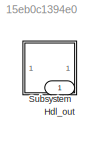
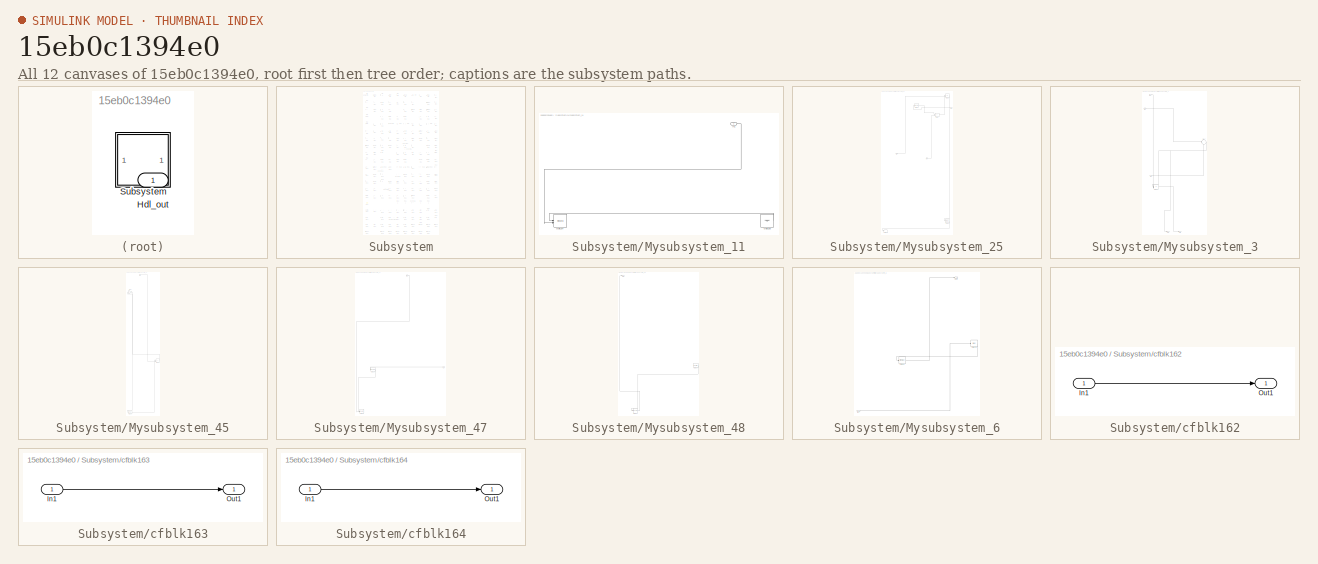
[diagram: thumbnail index - all 12 canvases of the model, root first then tree order]
MODEL slx_15eb0c1394e0
KIND model
CONFIG AbsTol = auto
CONFIG EnableMultiTasking = off
CONFIG FixedStep = auto
CONFIG MaxStep = auto
CONFIG MinStep = auto
CONFIG RelTol = 1e-3
CONFIG SampleTimeConstraint = Unconstrained
CONFIG SolverName = VariableStepAuto
CONFIG StartTime = 0.0
CONFIG StopTime = 10.0
BLOCK [Outport] Hdl_out
  OutDataTypeStr = uint8
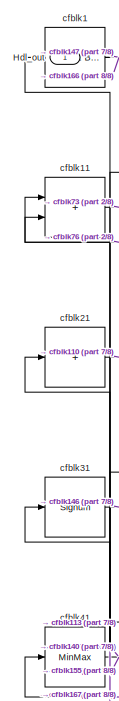
[diagram: Subsystem - part 1/8, top left region]
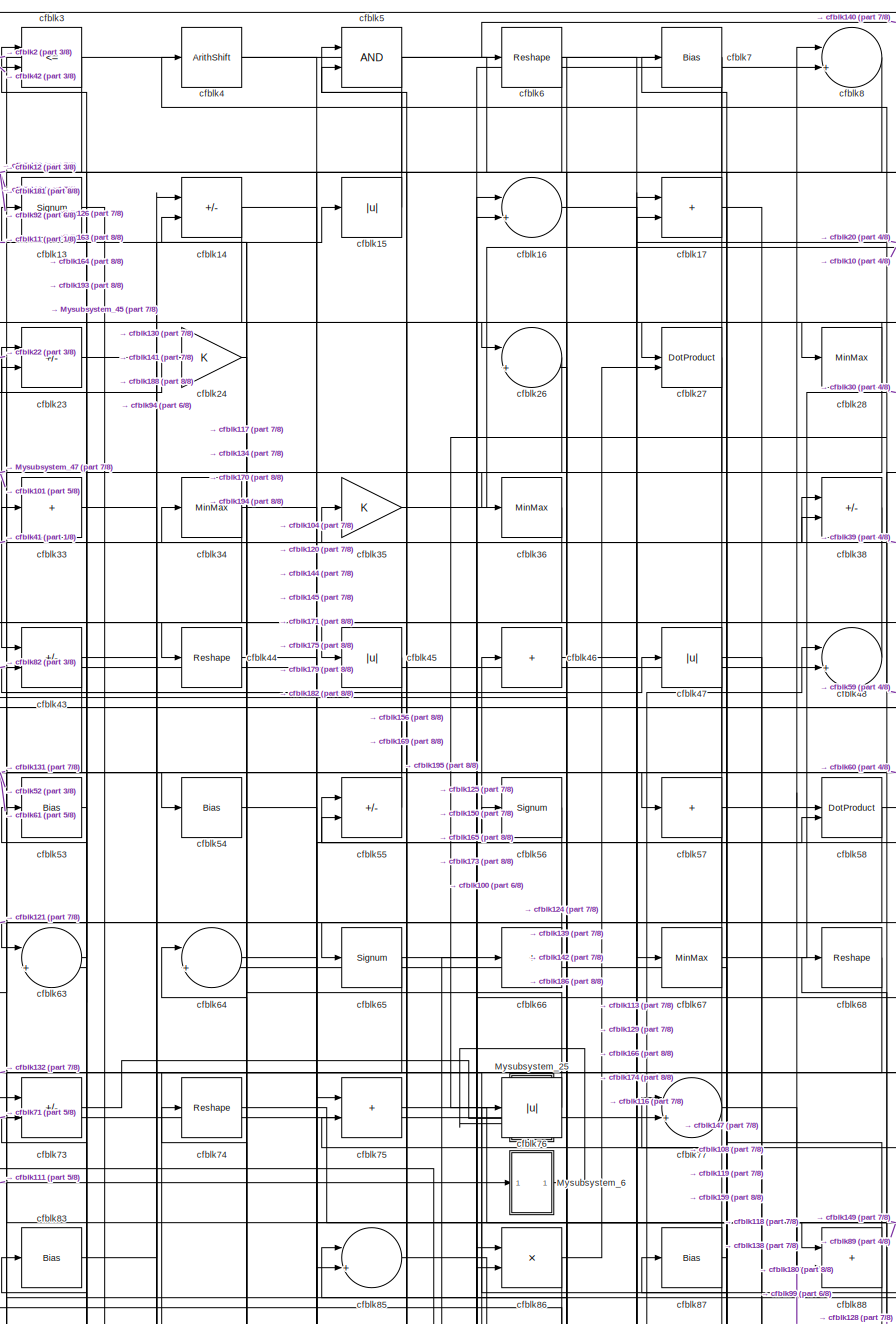
[diagram: Subsystem - part 2/8, top center region]
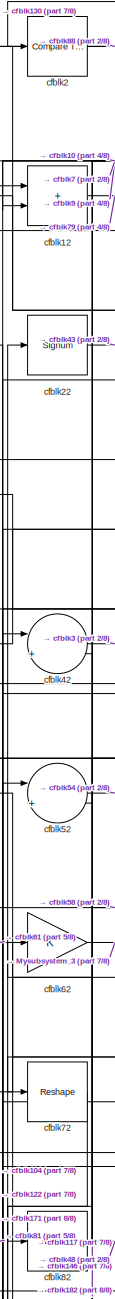
[diagram: Subsystem - part 3/8, top left region]
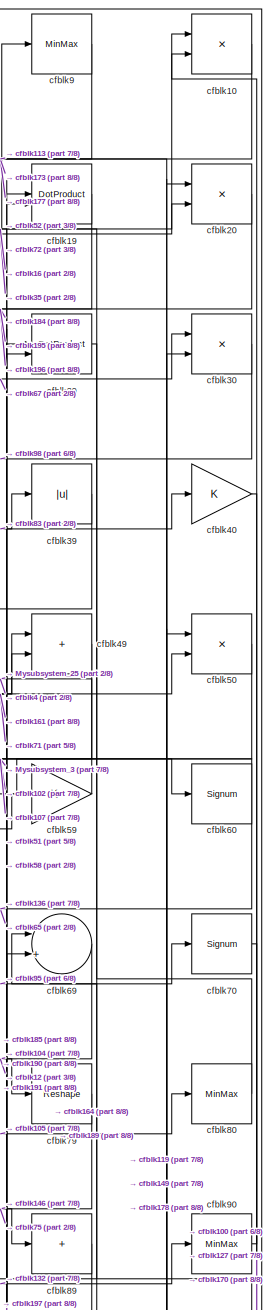
[diagram: Subsystem - part 4/8, top right region]
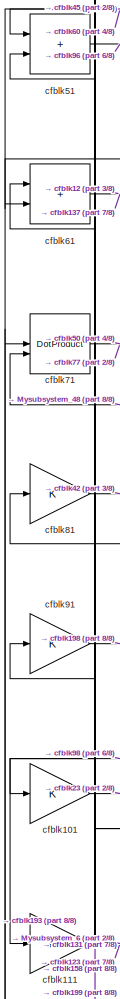
[diagram: Subsystem - part 5/8, middle left region]
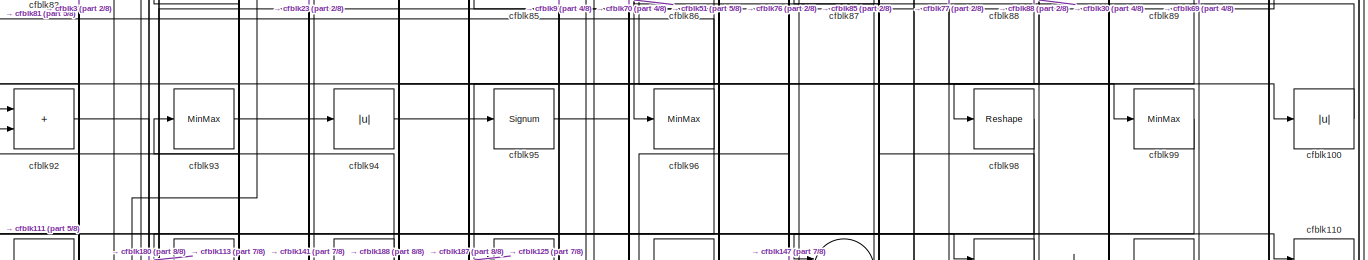
[diagram: Subsystem - part 6/8, full width, middle band]
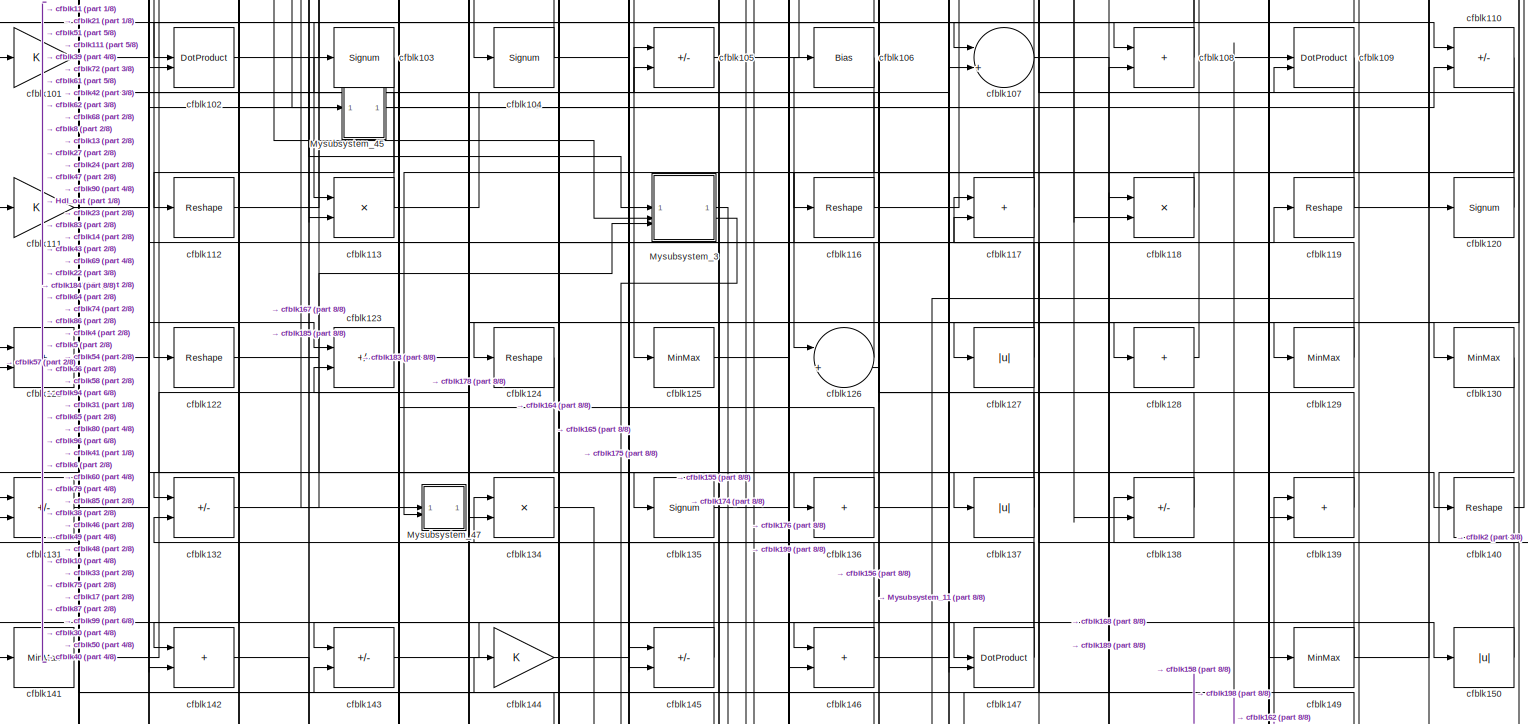
[diagram: Subsystem - part 7/8, full width, middle band]
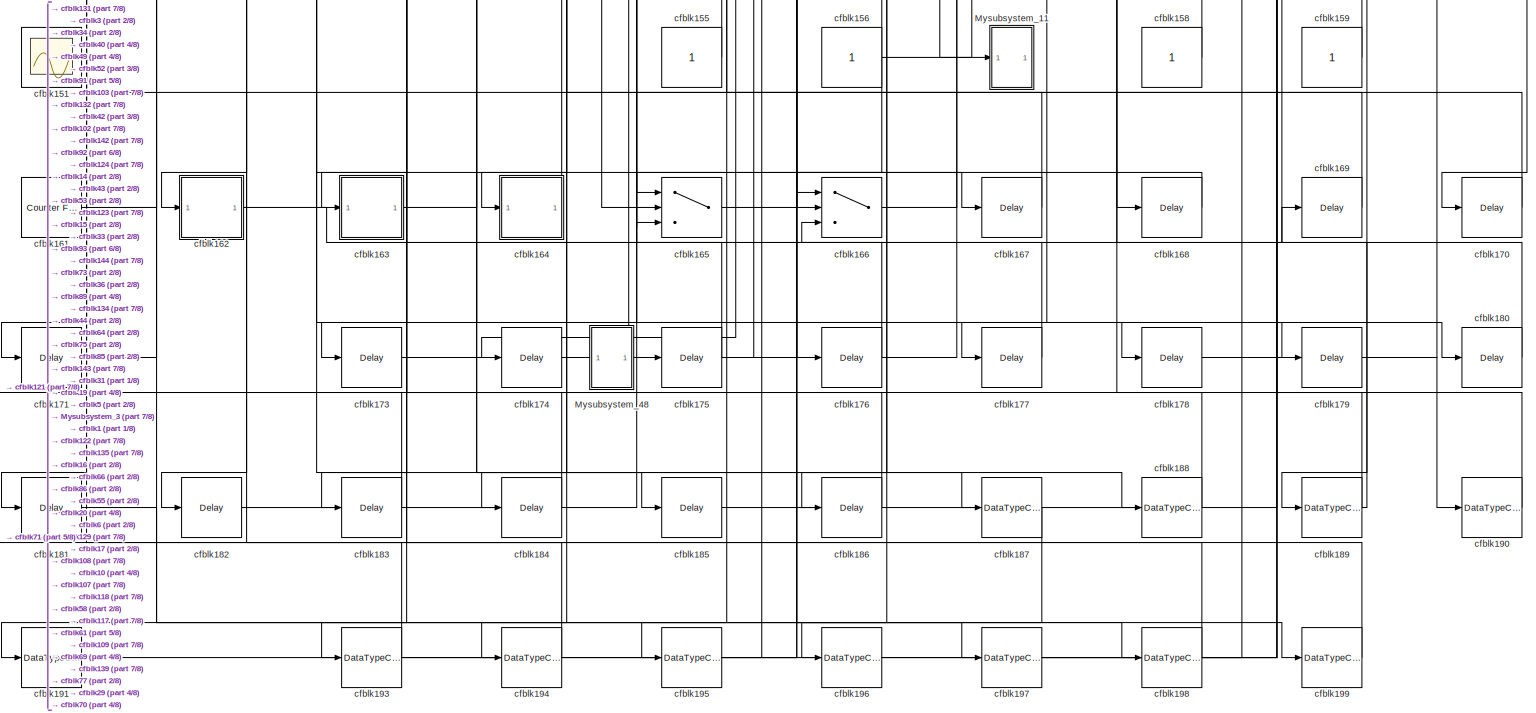
[diagram: Subsystem - part 8/8, full width, bottom band]
BLOCK [SubSystem] Subsystem
BLOCK [Outport] Subsystem/Hdl_out
  OutDataTypeStr = uint8
BLOCK [SubSystem] Subsystem/Mysubsystem_11
  RTWFcnName = Mysubsystem_11
  RTWFcnNameOpts = User specified
  RTWFileNameOpts = Use function name
  RTWSystemCode = Reusable function
  TreatAsAtomicUnit = on
BLOCK [Inport] Subsystem/Mysubsystem_11/In1
BLOCK [Record] Subsystem/Mysubsystem_11/cfblk154
  CompatibilityTag = XY
  FileSettingsInternal = {"entries":[{"content":{"excelSettings":{"content":{},"type":"Streamout.ExcelSettings"}},"type":"Streamout.FileSettingStorage","uuid":""}],"packageUris":["http:\/\/schema.mathworks.com\/mf0\/streamout_blocks\/R2020a"],"version":"1.0"}
  Layout = [1 1]
  SignalsInternal = {"entries":[{"content":{},"type":"RecordBlkView.InputSignals","uuid":""}],"packageUris":["http:\/\/schema.mathworks.com\/mf0\/streamout_blocks\/R2020a"],"version":"1.0"}
  VisualizationBindings = {"xyplotplugin":{"info":[{"series":[],"subplotID":1}]}}
  st = -1
BLOCK [Ground] Subsystem/Mysubsystem_11/cfblk160
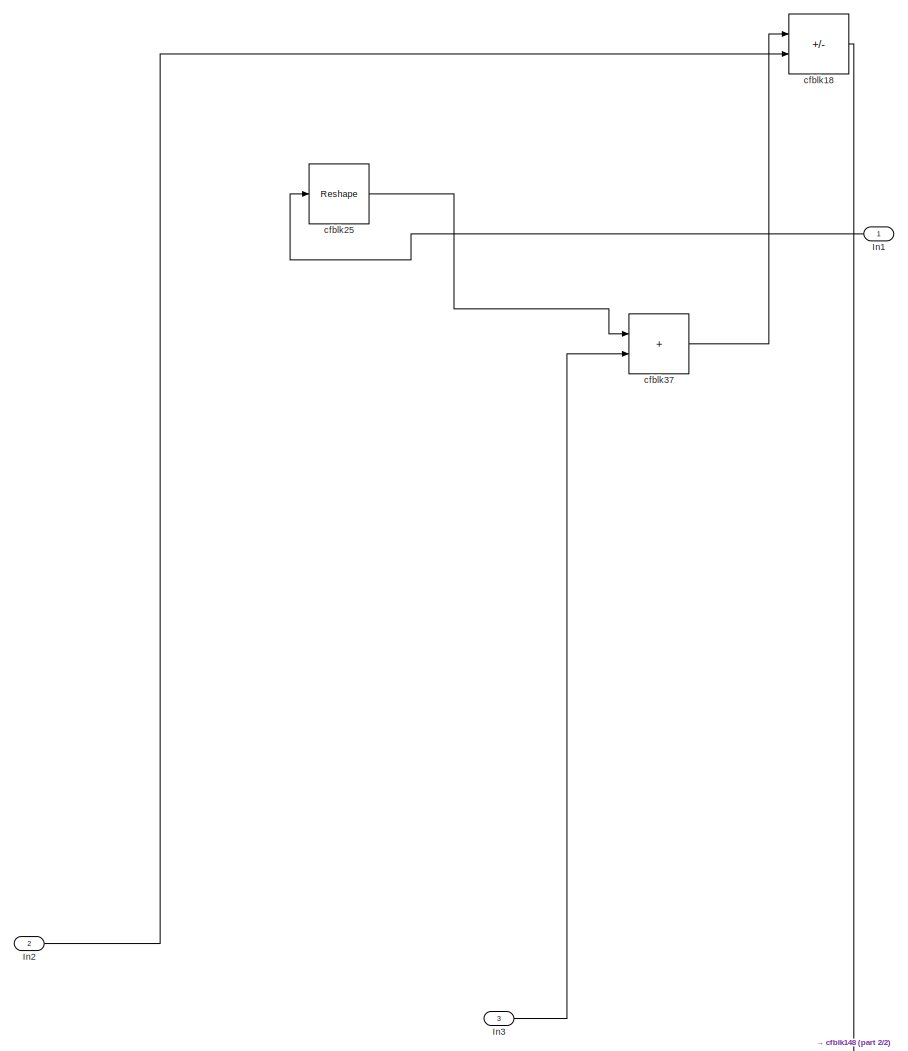
[diagram: Subsystem/Mysubsystem_25 - part 1/2, full width, top band]
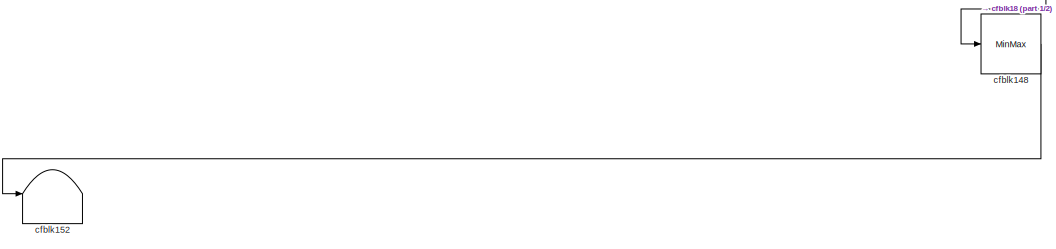
[diagram: Subsystem/Mysubsystem_25 - part 2/2, full width, bottom band]
BLOCK [SubSystem] Subsystem/Mysubsystem_25
  RTWFcnName = Mysubsystem_25
  RTWFcnNameOpts = User specified
  RTWFileNameOpts = Use function name
  RTWSystemCode = Reusable function
  TreatAsAtomicUnit = on
BLOCK [Inport] Subsystem/Mysubsystem_25/In1
BLOCK [Inport] Subsystem/Mysubsystem_25/In2
  Port = 2
BLOCK [Inport] Subsystem/Mysubsystem_25/In3
  Port = 3
BLOCK [MinMax] Subsystem/Mysubsystem_25/cfblk148
BLOCK [Terminator] Subsystem/Mysubsystem_25/cfblk152
BLOCK [Sum] Subsystem/Mysubsystem_25/cfblk18
  IconShape = rectangular
  Inputs = +-
BLOCK [Reshape] Subsystem/Mysubsystem_25/cfblk25
BLOCK [Sum] Subsystem/Mysubsystem_25/cfblk37
  IconShape = rectangular
BLOCK [SubSystem] Subsystem/Mysubsystem_3
  RTWFcnName = Mysubsystem_3
  RTWFcnNameOpts = User specified
  RTWFileNameOpts = Use function name
  RTWSystemCode = Reusable function
  TreatAsAtomicUnit = on
BLOCK [Inport] Subsystem/Mysubsystem_3/In1
BLOCK [Inport] Subsystem/Mysubsystem_3/In2
  Port = 2
BLOCK [Inport] Subsystem/Mysubsystem_3/In3
  Port = 3
BLOCK [Outport] Subsystem/Mysubsystem_3/Out1
BLOCK [Outport] Subsystem/Mysubsystem_3/Out2
  Port = 2
BLOCK [Product] Subsystem/Mysubsystem_3/cfblk133
  Inputs = */
  RndMeth = Zero
  SaturateOnIntegerOverflow = on
BLOCK [Sum] Subsystem/Mysubsystem_3/cfblk97
  Inputs = |++
BLOCK [SubSystem] Subsystem/Mysubsystem_45
  RTWFcnName = Mysubsystem_45
  RTWFcnNameOpts = User specified
  RTWFileNameOpts = Use function name
  RTWSystemCode = Reusable function
  TreatAsAtomicUnit = on
BLOCK [Inport] Subsystem/Mysubsystem_45/In1
BLOCK [Sum] Subsystem/Mysubsystem_45/cfblk115
  IconShape = rectangular
BLOCK [Delay] Subsystem/Mysubsystem_45/cfblk172
  InputPortMap = u0
  SampleTime = 1
BLOCK [Gain] Subsystem/Mysubsystem_45/cfblk32
BLOCK [SubSystem] Subsystem/Mysubsystem_47
  RTWFcnName = Mysubsystem_47
  RTWFcnNameOpts = User specified
  RTWFileNameOpts = Use function name
  RTWSystemCode = Reusable function
  TreatAsAtomicUnit = on
BLOCK [Inport] Subsystem/Mysubsystem_47/In1
BLOCK [Inport] Subsystem/Mysubsystem_47/In2
  Port = 2
BLOCK [Reshape] Subsystem/Mysubsystem_47/cfblk114
BLOCK [Record] Subsystem/Mysubsystem_47/cfblk153
  CompatibilityTag = XY
  FileSettingsInternal = {"entries":[{"content":{"excelSettings":{"content":{},"type":"Streamout.ExcelSettings"}},"type":"Streamout.FileSettingStorage","uuid":""}],"packageUris":["http:\/\/schema.mathworks.com\/mf0\/streamout_blocks\/R2020a"],"version":"1.0"}
  Layout = [1 1]
  SignalsInternal = {"entries":[{"content":{},"type":"RecordBlkView.InputSignals","uuid":""}],"packageUris":["http:\/\/schema.mathworks.com\/mf0\/streamout_blocks\/R2020a"],"version":"1.0"}
  VisualizationBindings = {"xyplotplugin":{"info":[{"series":[],"subplotID":1}]}}
  st = -1
BLOCK [SubSystem] Subsystem/Mysubsystem_48
  RTWFcnName = Mysubsystem_48
  RTWFcnNameOpts = User specified
  RTWFileNameOpts = Use function name
  RTWSystemCode = Reusable function
  TreatAsAtomicUnit = on
BLOCK [Outport] Subsystem/Mysubsystem_48/Out1
BLOCK [Reference] Subsystem/Mysubsystem_48/cfblk157  REF=hdlsllib/Sources/Counter
Free-Running
  SourceBlock = hdlsllib/Sources/Counter\nFree-Running
  SourceType = Counter Free-Running
BLOCK [DataTypeConversion] Subsystem/Mysubsystem_48/cfblk192
  OutDataTypeStr = uint8
  RndMeth = Floor
  SaturateOnIntegerOverflow = off
BLOCK [SubSystem] Subsystem/Mysubsystem_6
  RTWFcnName = Mysubsystem_6
  RTWFcnNameOpts = User specified
  RTWFileNameOpts = Use function name
  RTWSystemCode = Reusable function
  TreatAsAtomicUnit = on
BLOCK [Inport] Subsystem/Mysubsystem_6/In1
BLOCK [Outport] Subsystem/Mysubsystem_6/Out1
BLOCK [Bias] Subsystem/Mysubsystem_6/cfblk78
  Bias = 0.0
  SaturateOnIntegerOverflow = off
BLOCK [MinMax] Subsystem/Mysubsystem_6/cfblk84
BLOCK [Reference] Subsystem/cfblk1  REF=simulink/Logic and Bit
Operations/Extract Bits
  LibrarySourceBlock = hdlsllib/Logic and Bit\nOperations/Extract Bits
  SourceBlock = simulink/Logic and Bit\nOperations/Extract Bits
  SourceType = Extract Bits
BLOCK [Product] Subsystem/cfblk10
  Inputs = */
  OutDataTypeStr = uint8
  RndMeth = Zero
  SaturateOnIntegerOverflow = on
BLOCK [Abs] Subsystem/cfblk100
  OutDataTypeStr = uint8
  SaturateOnIntegerOverflow = off
BLOCK [Gain] Subsystem/cfblk101
  OutDataTypeStr = uint8
BLOCK [DotProduct] Subsystem/cfblk102
  OutDataTypeStr = uint8
BLOCK [Signum] Subsystem/cfblk103
BLOCK [Signum] Subsystem/cfblk104
BLOCK [Sum] Subsystem/cfblk105
  IconShape = rectangular
  Inputs = +-
  OutDataTypeStr = uint8
BLOCK [Bias] Subsystem/cfblk106
  Bias = 0.0
  SaturateOnIntegerOverflow = off
BLOCK [Sum] Subsystem/cfblk107
  Inputs = |++
  OutDataTypeStr = uint8
BLOCK [Sum] Subsystem/cfblk108
  IconShape = rectangular
  OutDataTypeStr = uint8
BLOCK [DotProduct] Subsystem/cfblk109
  OutDataTypeStr = uint8
BLOCK [Sum] Subsystem/cfblk11
  IconShape = rectangular
  OutDataTypeStr = uint8
BLOCK [Sum] Subsystem/cfblk110
  IconShape = rectangular
  Inputs = +-
  OutDataTypeStr = uint8
BLOCK [Gain] Subsystem/cfblk111
  OutDataTypeStr = uint8
BLOCK [Reshape] Subsystem/cfblk112
BLOCK [Product] Subsystem/cfblk113
  Inputs = */
  OutDataTypeStr = uint8
  RndMeth = Zero
  SaturateOnIntegerOverflow = on
BLOCK [Reshape] Subsystem/cfblk116
BLOCK [Sum] Subsystem/cfblk117
  IconShape = rectangular
  OutDataTypeStr = uint8
BLOCK [Product] Subsystem/cfblk118
  Inputs = */
  OutDataTypeStr = uint8
  RndMeth = Zero
  SaturateOnIntegerOverflow = on
BLOCK [Reshape] Subsystem/cfblk119
BLOCK [Sum] Subsystem/cfblk12
  IconShape = rectangular
  OutDataTypeStr = uint8
BLOCK [Signum] Subsystem/cfblk120
BLOCK [Sum] Subsystem/cfblk121
  IconShape = rectangular
  OutDataTypeStr = uint8
BLOCK [Reshape] Subsystem/cfblk122
BLOCK [Sum] Subsystem/cfblk123
  IconShape = rectangular
  Inputs = +-
  OutDataTypeStr = uint8
BLOCK [Reshape] Subsystem/cfblk124
BLOCK [MinMax] Subsystem/cfblk125
  OutDataTypeStr = uint8
BLOCK [Sum] Subsystem/cfblk126
  Inputs = |++
  OutDataTypeStr = uint8
BLOCK [Abs] Subsystem/cfblk127
  OutDataTypeStr = uint8
  SaturateOnIntegerOverflow = off
BLOCK [Sum] Subsystem/cfblk128
  IconShape = rectangular
  Inputs = +
  OutDataTypeStr = uint8
BLOCK [MinMax] Subsystem/cfblk129
  OutDataTypeStr = uint8
BLOCK [Signum] Subsystem/cfblk13
BLOCK [MinMax] Subsystem/cfblk130
  OutDataTypeStr = uint8
BLOCK [Sum] Subsystem/cfblk131
  IconShape = rectangular
  Inputs = +-
  OutDataTypeStr = uint8
BLOCK [Sum] Subsystem/cfblk132
  IconShape = rectangular
  Inputs = +-
  OutDataTypeStr = uint8
BLOCK [Product] Subsystem/cfblk134
  Inputs = */
  OutDataTypeStr = uint8
  RndMeth = Zero
  SaturateOnIntegerOverflow = on
BLOCK [Signum] Subsystem/cfblk135
BLOCK [Sum] Subsystem/cfblk136
  IconShape = rectangular
  Inputs = +
  OutDataTypeStr = uint8
BLOCK [Abs] Subsystem/cfblk137
  OutDataTypeStr = uint8
  SaturateOnIntegerOverflow = off
BLOCK [Sum] Subsystem/cfblk138
  IconShape = rectangular
  Inputs = +-
  OutDataTypeStr = uint8
BLOCK [Sum] Subsystem/cfblk139
  IconShape = rectangular
  OutDataTypeStr = uint8
BLOCK [Sum] Subsystem/cfblk14
  IconShape = rectangular
  Inputs = +-
  OutDataTypeStr = uint8
BLOCK [Reshape] Subsystem/cfblk140
BLOCK [MinMax] Subsystem/cfblk141
  OutDataTypeStr = uint8
BLOCK [Sum] Subsystem/cfblk142
  IconShape = rectangular
  OutDataTypeStr = uint8
BLOCK [Sum] Subsystem/cfblk143
  IconShape = rectangular
  Inputs = +-
  OutDataTypeStr = uint8
BLOCK [Gain] Subsystem/cfblk144
  OutDataTypeStr = uint8
BLOCK [Sum] Subsystem/cfblk145
  IconShape = rectangular
  Inputs = +-
  OutDataTypeStr = uint8
BLOCK [Sum] Subsystem/cfblk146
  IconShape = rectangular
  OutDataTypeStr = uint8
BLOCK [DotProduct] Subsystem/cfblk147
  OutDataTypeStr = uint8
BLOCK [MinMax] Subsystem/cfblk149
  OutDataTypeStr = uint8
BLOCK [Abs] Subsystem/cfblk15
  OutDataTypeStr = uint8
  SaturateOnIntegerOverflow = off
BLOCK [Abs] Subsystem/cfblk150
  OutDataTypeStr = uint8
  SaturateOnIntegerOverflow = off
BLOCK [Scope] Subsystem/cfblk151
  Floating = on
  NumInputPorts = 1
  ScopeSpecificationString = Simulink.scopes.TimeScopeBlockCfg('CurrentConfiguration', extmgr.ConfigurationSet(extmgr.Configuration('Core','General UI',true,'FigureColor',[0.156862745098039 0.156862745098039 0.156862745098039]),extmgr.Configuration('Core','Source UI',true),extmgr.Configuration('Sources','WiredSimulink',true,'DataLoggingSaveFormat','StructureWithTime','DataLoggingLimitDataPoints',true,'DataLoggingDecimation','...<+2674ch>
BLOCK [Constant] Subsystem/cfblk155
  OutDataTypeStr = uint8
  SampleTime = -1
BLOCK [Constant] Subsystem/cfblk156
  OutDataTypeStr = uint8
  SampleTime = -1
BLOCK [Constant] Subsystem/cfblk158
  OutDataTypeStr = uint8
  SampleTime = -1
BLOCK [Constant] Subsystem/cfblk159
  OutDataTypeStr = uint8
  SampleTime = -1
BLOCK [Sum] Subsystem/cfblk16
  Inputs = |++
  OutDataTypeStr = uint8
BLOCK [Reference] Subsystem/cfblk161  REF=hdlsllib/Sources/Counter
Free-Running
  SourceBlock = hdlsllib/Sources/Counter\nFree-Running
  SourceType = Counter Free-Running
BLOCK [SubSystem] Subsystem/cfblk162
  LibrarySourceBlock = hdlsllib/Ports &\nSubsystems/Subsystem
BLOCK [Inport] Subsystem/cfblk162/In1
BLOCK [Outport] Subsystem/cfblk162/Out1
BLOCK [SubSystem] Subsystem/cfblk163
  LibrarySourceBlock = hdlsllib/Ports &\nSubsystems/Subsystem
BLOCK [Inport] Subsystem/cfblk163/In1
BLOCK [Outport] Subsystem/cfblk163/Out1
BLOCK [SubSystem] Subsystem/cfblk164
  LibrarySourceBlock = hdlsllib/Ports &\nSubsystems/Subsystem
BLOCK [Inport] Subsystem/cfblk164/In1
BLOCK [Outport] Subsystem/cfblk164/Out1
BLOCK [Switch] Subsystem/cfblk165
  InputSameDT = off
  OutDataTypeStr = uint8
  SaturateOnIntegerOverflow = off
BLOCK [Switch] Subsystem/cfblk166
  InputSameDT = off
  OutDataTypeStr = uint8
  SaturateOnIntegerOverflow = off
BLOCK [Delay] Subsystem/cfblk167
  InputPortMap = u0
  SampleTime = 1
BLOCK [Delay] Subsystem/cfblk168
  InputPortMap = u0
  SampleTime = 1
BLOCK [Delay] Subsystem/cfblk169
  InputPortMap = u0
  SampleTime = 1
BLOCK [Sum] Subsystem/cfblk17
  IconShape = rectangular
  OutDataTypeStr = uint8
BLOCK [Delay] Subsystem/cfblk170
  InputPortMap = u0
  SampleTime = 1
BLOCK [Delay] Subsystem/cfblk171
  InputPortMap = u0
  SampleTime = 1
BLOCK [Delay] Subsystem/cfblk173
  InputPortMap = u0
  SampleTime = 1
BLOCK [Delay] Subsystem/cfblk174
  InputPortMap = u0
  SampleTime = 1
BLOCK [Delay] Subsystem/cfblk175
  InputPortMap = u0
  SampleTime = 1
BLOCK [Delay] Subsystem/cfblk176
  InputPortMap = u0
  SampleTime = 1
BLOCK [Delay] Subsystem/cfblk177
  InputPortMap = u0
  SampleTime = 1
BLOCK [Delay] Subsystem/cfblk178
  InputPortMap = u0
  SampleTime = 1
BLOCK [Delay] Subsystem/cfblk179
  InputPortMap = u0
  SampleTime = 1
BLOCK [Delay] Subsystem/cfblk180
  InputPortMap = u0
  SampleTime = 1
BLOCK [Delay] Subsystem/cfblk181
  InputPortMap = u0
  SampleTime = 1
BLOCK [Delay] Subsystem/cfblk182
  InputPortMap = u0
  SampleTime = 1
BLOCK [Delay] Subsystem/cfblk183
  InputPortMap = u0
  SampleTime = 1
BLOCK [Delay] Subsystem/cfblk184
  InputPortMap = u0
  SampleTime = 1
BLOCK [Delay] Subsystem/cfblk185
  InputPortMap = u0
  SampleTime = 1
BLOCK [Delay] Subsystem/cfblk186
  InputPortMap = u0
  SampleTime = 1
BLOCK [DataTypeConversion] Subsystem/cfblk187
  OutDataTypeStr = uint8
  RndMeth = Floor
  SaturateOnIntegerOverflow = off
BLOCK [DataTypeConversion] Subsystem/cfblk188
  OutDataTypeStr = uint8
  RndMeth = Floor
  SaturateOnIntegerOverflow = off
BLOCK [DataTypeConversion] Subsystem/cfblk189
  OutDataTypeStr = uint8
  RndMeth = Floor
  SaturateOnIntegerOverflow = off
BLOCK [DotProduct] Subsystem/cfblk19
  OutDataTypeStr = uint8
BLOCK [DataTypeConversion] Subsystem/cfblk190
  OutDataTypeStr = uint8
  RndMeth = Floor
  SaturateOnIntegerOverflow = off
BLOCK [DataTypeConversion] Subsystem/cfblk191
  OutDataTypeStr = uint8
  RndMeth = Floor
  SaturateOnIntegerOverflow = off
BLOCK [DataTypeConversion] Subsystem/cfblk193
  OutDataTypeStr = uint8
  RndMeth = Floor
  SaturateOnIntegerOverflow = off
BLOCK [DataTypeConversion] Subsystem/cfblk194
  OutDataTypeStr = uint8
  RndMeth = Floor
  SaturateOnIntegerOverflow = off
BLOCK [DataTypeConversion] Subsystem/cfblk195
  OutDataTypeStr = uint8
  RndMeth = Floor
  SaturateOnIntegerOverflow = off
BLOCK [DataTypeConversion] Subsystem/cfblk196
  OutDataTypeStr = uint8
  RndMeth = Floor
  SaturateOnIntegerOverflow = off
BLOCK [DataTypeConversion] Subsystem/cfblk197
  OutDataTypeStr = uint8
  RndMeth = Floor
  SaturateOnIntegerOverflow = off
BLOCK [DataTypeConversion] Subsystem/cfblk198
  OutDataTypeStr = uint8
  RndMeth = Floor
  SaturateOnIntegerOverflow = off
BLOCK [DataTypeConversion] Subsystem/cfblk199
  OutDataTypeStr = uint8
  RndMeth = Floor
  SaturateOnIntegerOverflow = off
BLOCK [Reference] Subsystem/cfblk2  REF=hdlsllib/Logic and Bit
Operations/Compare
To Zero
  SourceBlock = hdlsllib/Logic and Bit\nOperations/Compare\nTo Zero
  SourceType = Compare To Zero
BLOCK [Product] Subsystem/cfblk20
  Inputs = */
  OutDataTypeStr = uint8
  RndMeth = Zero
  SaturateOnIntegerOverflow = on
BLOCK [Sum] Subsystem/cfblk21
  IconShape = rectangular
  Inputs = +
  OutDataTypeStr = uint8
BLOCK [Signum] Subsystem/cfblk22
BLOCK [Sum] Subsystem/cfblk23
  IconShape = rectangular
  Inputs = +-
  OutDataTypeStr = uint8
BLOCK [Gain] Subsystem/cfblk24
  OutDataTypeStr = uint8
BLOCK [Sum] Subsystem/cfblk26
  Inputs = |++
  OutDataTypeStr = uint8
BLOCK [DotProduct] Subsystem/cfblk27
  OutDataTypeStr = uint8
BLOCK [MinMax] Subsystem/cfblk28
  OutDataTypeStr = uint8
BLOCK [DotProduct] Subsystem/cfblk29
  OutDataTypeStr = uint8
BLOCK [RelationalOperator] Subsystem/cfblk3
  InputSameDT = off
  Operator = <=
  OutDataTypeStr = boolean
BLOCK [Product] Subsystem/cfblk30
  Inputs = */
  OutDataTypeStr = uint8
  RndMeth = Zero
  SaturateOnIntegerOverflow = on
BLOCK [Signum] Subsystem/cfblk31
BLOCK [Sum] Subsystem/cfblk33
  IconShape = rectangular
  Inputs = +
  OutDataTypeStr = uint8
BLOCK [MinMax] Subsystem/cfblk34
  OutDataTypeStr = uint8
BLOCK [Gain] Subsystem/cfblk35
  OutDataTypeStr = uint8
BLOCK [MinMax] Subsystem/cfblk36
  OutDataTypeStr = uint8
BLOCK [Sum] Subsystem/cfblk38
  IconShape = rectangular
  Inputs = +-
  OutDataTypeStr = uint8
BLOCK [Abs] Subsystem/cfblk39
  OutDataTypeStr = uint8
  SaturateOnIntegerOverflow = off
BLOCK [ArithShift] Subsystem/cfblk4
  BitShiftNumber = 8
  InputPortMap = u0
BLOCK [Gain] Subsystem/cfblk40
  OutDataTypeStr = uint8
BLOCK [MinMax] Subsystem/cfblk41
  OutDataTypeStr = uint8
BLOCK [Sum] Subsystem/cfblk42
  Inputs = |++
  OutDataTypeStr = uint8
BLOCK [Sum] Subsystem/cfblk43
  IconShape = rectangular
  Inputs = +-
  OutDataTypeStr = uint8
BLOCK [Reshape] Subsystem/cfblk44
BLOCK [Abs] Subsystem/cfblk45
  OutDataTypeStr = uint8
  SaturateOnIntegerOverflow = off
BLOCK [Sum] Subsystem/cfblk46
  IconShape = rectangular
  Inputs = +
  OutDataTypeStr = uint8
BLOCK [Abs] Subsystem/cfblk47
  OutDataTypeStr = uint8
  SaturateOnIntegerOverflow = off
BLOCK [Sum] Subsystem/cfblk48
  Inputs = |++
  OutDataTypeStr = uint8
BLOCK [Sum] Subsystem/cfblk49
  IconShape = rectangular
  OutDataTypeStr = uint8
BLOCK [Logic] Subsystem/cfblk5
  AllPortsSameDT = off
  OutDataTypeStr = boolean
BLOCK [Product] Subsystem/cfblk50
  Inputs = */
  OutDataTypeStr = uint8
  RndMeth = Zero
  SaturateOnIntegerOverflow = on
BLOCK [Sum] Subsystem/cfblk51
  IconShape = rectangular
  OutDataTypeStr = uint8
BLOCK [Sum] Subsystem/cfblk52
  Inputs = |++
  OutDataTypeStr = uint8
BLOCK [Bias] Subsystem/cfblk53
  Bias = 0.0
  SaturateOnIntegerOverflow = off
BLOCK [Bias] Subsystem/cfblk54
  Bias = 0.0
  SaturateOnIntegerOverflow = off
BLOCK [Sum] Subsystem/cfblk55
  IconShape = rectangular
  Inputs = +-
  OutDataTypeStr = uint8
BLOCK [Signum] Subsystem/cfblk56
BLOCK [Sum] Subsystem/cfblk57
  IconShape = rectangular
  Inputs = +
  OutDataTypeStr = uint8
BLOCK [DotProduct] Subsystem/cfblk58
  OutDataTypeStr = uint8
BLOCK [Gain] Subsystem/cfblk59
  OutDataTypeStr = uint8
BLOCK [Reshape] Subsystem/cfblk6
BLOCK [Signum] Subsystem/cfblk60
BLOCK [Sum] Subsystem/cfblk61
  IconShape = rectangular
  OutDataTypeStr = uint8
BLOCK [Gain] Subsystem/cfblk62
  OutDataTypeStr = uint8
BLOCK [Sum] Subsystem/cfblk63
  Inputs = |++
  OutDataTypeStr = uint8
BLOCK [Sum] Subsystem/cfblk64
  Inputs = |++
  OutDataTypeStr = uint8
BLOCK [Signum] Subsystem/cfblk65
BLOCK [Sum] Subsystem/cfblk66
  IconShape = rectangular
  Inputs = +
  OutDataTypeStr = uint8
BLOCK [MinMax] Subsystem/cfblk67
  OutDataTypeStr = uint8
BLOCK [Reshape] Subsystem/cfblk68
BLOCK [Sum] Subsystem/cfblk69
  Inputs = |++
  OutDataTypeStr = uint8
BLOCK [Bias] Subsystem/cfblk7
  Bias = 0.0
  SaturateOnIntegerOverflow = off
BLOCK [Signum] Subsystem/cfblk70
BLOCK [DotProduct] Subsystem/cfblk71
  OutDataTypeStr = uint8
BLOCK [Reshape] Subsystem/cfblk72
BLOCK [Sum] Subsystem/cfblk73
  IconShape = rectangular
  Inputs = +-
  OutDataTypeStr = uint8
BLOCK [Reshape] Subsystem/cfblk74
BLOCK [Sum] Subsystem/cfblk75
  IconShape = rectangular
  OutDataTypeStr = uint8
BLOCK [Abs] Subsystem/cfblk76
  OutDataTypeStr = uint8
  SaturateOnIntegerOverflow = off
BLOCK [Sum] Subsystem/cfblk77
  Inputs = |++
  OutDataTypeStr = uint8
BLOCK [Reshape] Subsystem/cfblk79
BLOCK [Sum] Subsystem/cfblk8
  Inputs = |++
  OutDataTypeStr = uint8
BLOCK [MinMax] Subsystem/cfblk80
  OutDataTypeStr = uint8
BLOCK [Gain] Subsystem/cfblk81
  OutDataTypeStr = uint8
BLOCK [MinMax] Subsystem/cfblk82
  OutDataTypeStr = uint8
BLOCK [Bias] Subsystem/cfblk83
  Bias = 0.0
  SaturateOnIntegerOverflow = off
BLOCK [Sum] Subsystem/cfblk85
  Inputs = |++
  OutDataTypeStr = uint8
BLOCK [Product] Subsystem/cfblk86
  Inputs = */
  OutDataTypeStr = uint8
  RndMeth = Zero
  SaturateOnIntegerOverflow = on
BLOCK [Bias] Subsystem/cfblk87
  Bias = 0.0
  SaturateOnIntegerOverflow = off
BLOCK [Sum] Subsystem/cfblk88
  IconShape = rectangular
  OutDataTypeStr = uint8
BLOCK [Sum] Subsystem/cfblk89
  IconShape = rectangular
  Inputs = +
  OutDataTypeStr = uint8
BLOCK [MinMax] Subsystem/cfblk9
  OutDataTypeStr = uint8
BLOCK [MinMax] Subsystem/cfblk90
  OutDataTypeStr = uint8
BLOCK [Gain] Subsystem/cfblk91
  OutDataTypeStr = uint8
BLOCK [Sum] Subsystem/cfblk92
  IconShape = rectangular
  OutDataTypeStr = uint8
BLOCK [MinMax] Subsystem/cfblk93
  OutDataTypeStr = uint8
BLOCK [Abs] Subsystem/cfblk94
  OutDataTypeStr = uint8
  SaturateOnIntegerOverflow = off
BLOCK [Signum] Subsystem/cfblk95
BLOCK [MinMax] Subsystem/cfblk96
  OutDataTypeStr = uint8
BLOCK [Reshape] Subsystem/cfblk98
BLOCK [MinMax] Subsystem/cfblk99
  OutDataTypeStr = uint8
LINE Subsystem/Mysubsystem_11/In1:1 -> Subsystem/Mysubsystem_11/cfblk154:2
LINE Subsystem/Mysubsystem_11/cfblk160:1 -> Subsystem/Mysubsystem_11/cfblk154:1
LINE Subsystem/Mysubsystem_25/In1:1 -> Subsystem/Mysubsystem_25/cfblk25:1
LINE Subsystem/Mysubsystem_25/In2:1 -> Subsystem/Mysubsystem_25/cfblk18:2
LINE Subsystem/Mysubsystem_25/In3:1 -> Subsystem/Mysubsystem_25/cfblk37:2
LINE Subsystem/Mysubsystem_25/cfblk148:1 -> Subsystem/Mysubsystem_25/cfblk152:1
LINE Subsystem/Mysubsystem_25/cfblk18:1 -> Subsystem/Mysubsystem_25/cfblk148:1
LINE Subsystem/Mysubsystem_25/cfblk25:1 -> Subsystem/Mysubsystem_25/cfblk37:1
LINE Subsystem/Mysubsystem_25/cfblk37:1 -> Subsystem/Mysubsystem_25/cfblk18:1
LINE Subsystem/Mysubsystem_3/In1:1 -> Subsystem/Mysubsystem_3/cfblk133:2
LINE Subsystem/Mysubsystem_3/In2:1 -> Subsystem/Mysubsystem_3/cfblk97:1
LINE Subsystem/Mysubsystem_3/In3:1 -> Subsystem/Mysubsystem_3/cfblk97:2
LINE Subsystem/Mysubsystem_3/cfblk133:1 -> Subsystem/Mysubsystem_3/Out2:1
NET Subsystem/Mysubsystem_3/cfblk97:1 -> Subsystem/Mysubsystem_3/Out1:1, Subsystem/Mysubsystem_3/cfblk133:1
LINE Subsystem/Mysubsystem_3:1 -> Subsystem/cfblk174:1
LINE Subsystem/Mysubsystem_3:2 -> Subsystem/cfblk175:1
LINE Subsystem/Mysubsystem_45/In1:1 -> Subsystem/Mysubsystem_45/cfblk115:2
LINE Subsystem/Mysubsystem_45/cfblk115:1 -> Subsystem/Mysubsystem_45/cfblk32:1
LINE Subsystem/Mysubsystem_45/cfblk172:1 -> Subsystem/Mysubsystem_45/cfblk115:1
LINE Subsystem/Mysubsystem_45/cfblk32:1 -> Subsystem/Mysubsystem_45/cfblk172:1
LINE Subsystem/Mysubsystem_47/In1:1 -> Subsystem/Mysubsystem_47/cfblk153:2
LINE Subsystem/Mysubsystem_47/In2:1 -> Subsystem/Mysubsystem_47/cfblk114:1
LINE Subsystem/Mysubsystem_47/cfblk114:1 -> Subsystem/Mysubsystem_47/cfblk153:1
LINE Subsystem/Mysubsystem_48/cfblk157:1 -> Subsystem/Mysubsystem_48/cfblk192:1
LINE Subsystem/Mysubsystem_48/cfblk192:1 -> Subsystem/Mysubsystem_48/Out1:1
LINE Subsystem/Mysubsystem_48:1 -> Subsystem/cfblk71:2
LINE Subsystem/Mysubsystem_6/In1:1 -> Subsystem/Mysubsystem_6/cfblk78:1
LINE Subsystem/Mysubsystem_6/cfblk78:1 -> Subsystem/Mysubsystem_6/cfblk84:1
LINE Subsystem/Mysubsystem_6/cfblk84:1 -> Subsystem/Mysubsystem_6/Out1:1
LINE Subsystem/Mysubsystem_6:1 -> Subsystem/Mysubsystem_25:3
NET Subsystem/cfblk100:1 -> Subsystem/cfblk69:1, Subsystem/cfblk76:1
LINE Subsystem/cfblk101:1 -> Subsystem/cfblk23:1
NET Subsystem/cfblk102:1 -> Subsystem/cfblk185:1, Subsystem/cfblk24:1
LINE Subsystem/cfblk103:1 -> Subsystem/cfblk162:1
NET Subsystem/cfblk104:1 -> Subsystem/cfblk22:1, Subsystem/cfblk56:1
LINE Subsystem/cfblk105:1 -> Subsystem/cfblk80:1
LINE Subsystem/cfblk106:1 -> Subsystem/cfblk135:1
LINE Subsystem/cfblk107:1 -> Subsystem/cfblk168:1
LINE Subsystem/cfblk108:1 -> Subsystem/cfblk87:1
LINE Subsystem/cfblk109:1 -> Subsystem/cfblk126:1
NET Subsystem/cfblk10:1 -> Subsystem/cfblk113:2, Subsystem/cfblk173:1, Subsystem/cfblk177:1, Subsystem/cfblk72:1
LINE Subsystem/cfblk110:1 -> Subsystem/cfblk126:2
NET Subsystem/cfblk111:1 -> Subsystem/Mysubsystem_6:1, Subsystem/cfblk123:1
LINE Subsystem/cfblk112:1 -> Subsystem/cfblk47:1
NET Subsystem/cfblk113:1 -> Subsystem/cfblk11:2, Subsystem/cfblk38:1
NET Subsystem/cfblk116:1 -> Subsystem/cfblk21:1, Subsystem/cfblk48:1
NET Subsystem/cfblk117:1 -> Subsystem/cfblk42:2, Subsystem/cfblk64:1
LINE Subsystem/cfblk118:1 -> Subsystem/cfblk116:1
NET Subsystem/cfblk119:1 -> Subsystem/cfblk109:2, Subsystem/cfblk50:1, Subsystem/cfblk75:2
LINE Subsystem/cfblk11:1 -> Subsystem/cfblk73:1
NET Subsystem/cfblk120:1 -> Subsystem/Mysubsystem_47:2, Subsystem/cfblk33:1
LINE Subsystem/cfblk121:1 -> Subsystem/cfblk119:1
NET Subsystem/cfblk122:1 -> Subsystem/Mysubsystem_3:3, Subsystem/cfblk176:1
NET Subsystem/cfblk123:1 -> Subsystem/cfblk128:1, Subsystem/cfblk178:1
LINE Subsystem/cfblk124:1 -> Subsystem/cfblk183:1
LINE Subsystem/cfblk125:1 -> Subsystem/cfblk8:2
LINE Subsystem/cfblk126:1 -> Subsystem/cfblk23:2
LINE Subsystem/cfblk127:1 -> Subsystem/cfblk106:1
LINE Subsystem/cfblk128:1 -> Subsystem/cfblk68:1
NET Subsystem/cfblk129:1 -> Subsystem/Mysubsystem_11:1, Subsystem/cfblk74:1
LINE Subsystem/cfblk12:1 -> Subsystem/cfblk79:1
LINE Subsystem/cfblk130:1 -> Subsystem/cfblk2:1
NET Subsystem/cfblk131:1 -> Subsystem/cfblk110:2, Subsystem/cfblk51:2
LINE Subsystem/cfblk132:1 -> Subsystem/cfblk90:1
NET Subsystem/cfblk134:1 -> Subsystem/cfblk165:2, Subsystem/cfblk34:1
LINE Subsystem/cfblk135:1 -> Subsystem/cfblk199:1
NET Subsystem/cfblk136:1 -> Subsystem/cfblk103:1, Subsystem/cfblk107:2
LINE Subsystem/cfblk137:1 -> Subsystem/cfblk105:1
LINE Subsystem/cfblk138:1 -> Subsystem/cfblk41:1
LINE Subsystem/cfblk139:1 -> Subsystem/cfblk85:1
LINE Subsystem/cfblk13:1 -> Subsystem/Mysubsystem_45:1
LINE Subsystem/cfblk140:1 -> Subsystem/cfblk6:1
NET Subsystem/cfblk141:1 -> Subsystem/cfblk105:2, Subsystem/cfblk14:1
LINE Subsystem/cfblk142:1 -> Subsystem/cfblk167:1
LINE Subsystem/cfblk143:1 -> Subsystem/cfblk147:1
LINE Subsystem/cfblk144:1 -> Subsystem/cfblk58:2
NET Subsystem/cfblk145:1 -> Subsystem/cfblk134:1, Subsystem/cfblk143:1
NET Subsystem/cfblk146:1 -> Subsystem/cfblk49:1, Subsystem/cfblk62:1
NET Subsystem/cfblk147:1 -> Subsystem/Hdl_out:1, Subsystem/cfblk83:1
NET Subsystem/cfblk149:1 -> Subsystem/cfblk117:2, Subsystem/cfblk30:2
NET Subsystem/cfblk14:1 -> Subsystem/cfblk163:1, Subsystem/cfblk26:1
LINE Subsystem/cfblk150:1 -> Subsystem/cfblk138:1
NET Subsystem/cfblk155:1 -> Subsystem/cfblk143:2, Subsystem/cfblk31:1
NET Subsystem/cfblk156:1 -> Subsystem/cfblk108:2, Subsystem/cfblk165:3, Subsystem/cfblk55:1
NET Subsystem/cfblk158:1 -> Subsystem/cfblk117:1, Subsystem/cfblk61:1
LINE Subsystem/cfblk159:1 -> Subsystem/cfblk77:1
LINE Subsystem/cfblk15:1 -> Subsystem/cfblk5:1
NET Subsystem/cfblk161:1 -> Subsystem/cfblk40:1, Subsystem/cfblk49:2
LINE Subsystem/cfblk162/In1:1 -> Subsystem/cfblk162/Out1:1
LINE Subsystem/cfblk162:1 -> Subsystem/cfblk139:1
LINE Subsystem/cfblk163/In1:1 -> Subsystem/cfblk163/Out1:1
LINE Subsystem/cfblk163:1 -> Subsystem/cfblk15:1
LINE Subsystem/cfblk164/In1:1 -> Subsystem/cfblk164/Out1:1
NET Subsystem/cfblk164:1 -> Subsystem/cfblk144:1, Subsystem/cfblk73:2
LINE Subsystem/cfblk165:1 -> Subsystem/cfblk16:1
LINE Subsystem/cfblk166:1 -> Subsystem/cfblk17:2
LINE Subsystem/cfblk167:1 -> Subsystem/cfblk1:1
LINE Subsystem/cfblk168:1 -> Subsystem/cfblk166:2
LINE Subsystem/cfblk169:1 -> Subsystem/cfblk5:2
NET Subsystem/cfblk16:1 -> Subsystem/cfblk20:2, Subsystem/cfblk28:1
LINE Subsystem/cfblk170:1 -> Subsystem/cfblk14:2
LINE Subsystem/cfblk171:1 -> Subsystem/cfblk52:1
LINE Subsystem/cfblk173:1 -> Subsystem/cfblk16:2
LINE Subsystem/cfblk174:1 -> Subsystem/cfblk17:1
LINE Subsystem/cfblk175:1 -> Subsystem/cfblk75:1
LINE Subsystem/cfblk176:1 -> Subsystem/cfblk123:2
LINE Subsystem/cfblk177:1 -> Subsystem/cfblk166:3
LINE Subsystem/cfblk178:1 -> Subsystem/cfblk20:1
LINE Subsystem/cfblk179:1 -> Subsystem/cfblk190:1
NET Subsystem/cfblk17:1 -> Subsystem/cfblk118:2, Subsystem/cfblk57:1
LINE Subsystem/cfblk180:1 -> Subsystem/cfblk58:1
LINE Subsystem/cfblk181:1 -> Subsystem/cfblk197:1
LINE Subsystem/cfblk182:1 -> Subsystem/cfblk85:2
LINE Subsystem/cfblk183:1 -> Subsystem/cfblk121:1
LINE Subsystem/cfblk184:1 -> Subsystem/cfblk131:2
LINE Subsystem/cfblk185:1 -> Subsystem/cfblk69:2
LINE Subsystem/cfblk186:1 -> Subsystem/cfblk43:2
LINE Subsystem/cfblk187:1 -> Subsystem/cfblk191:1
LINE Subsystem/cfblk188:1 -> Subsystem/cfblk93:1
NET Subsystem/cfblk189:1 -> Subsystem/cfblk118:1, Subsystem/cfblk169:1
LINE Subsystem/cfblk190:1 -> Subsystem/cfblk29:1
LINE Subsystem/cfblk191:1 -> Subsystem/cfblk29:2
NET Subsystem/cfblk193:1 -> Subsystem/cfblk71:1, Subsystem/cfblk86:2
LINE Subsystem/cfblk194:1 -> Subsystem/cfblk53:1
NET Subsystem/cfblk195:1 -> Subsystem/cfblk66:1, Subsystem/cfblk86:1
LINE Subsystem/cfblk196:1 -> Subsystem/cfblk19:1
LINE Subsystem/cfblk197:1 -> Subsystem/cfblk19:2
NET Subsystem/cfblk198:1 -> Subsystem/cfblk109:1, Subsystem/cfblk132:2
LINE Subsystem/cfblk199:1 -> Subsystem/cfblk91:1
LINE Subsystem/cfblk19:1 -> Subsystem/cfblk195:1
LINE Subsystem/cfblk1:1 -> Subsystem/cfblk166:1
NET Subsystem/cfblk20:1 -> Subsystem/cfblk184:1, Subsystem/cfblk196:1
LINE Subsystem/cfblk21:1 -> Subsystem/cfblk110:1
LINE Subsystem/cfblk22:1 -> Subsystem/cfblk43:1
LINE Subsystem/cfblk23:1 -> Subsystem/cfblk94:1
LINE Subsystem/cfblk24:1 -> Subsystem/cfblk44:1
LINE Subsystem/cfblk26:1 -> Subsystem/cfblk101:1
LINE Subsystem/cfblk27:1 -> Subsystem/Mysubsystem_47:1
NET Subsystem/cfblk28:1 -> Subsystem/cfblk27:1, Subsystem/cfblk63:2
LINE Subsystem/cfblk29:1 -> Subsystem/cfblk189:1
LINE Subsystem/cfblk2:1 -> Subsystem/cfblk88:1
LINE Subsystem/cfblk30:1 -> Subsystem/cfblk98:1
LINE Subsystem/cfblk31:1 -> Subsystem/cfblk146:2
LINE Subsystem/cfblk33:1 -> Subsystem/cfblk188:1
NET Subsystem/cfblk34:1 -> Subsystem/cfblk108:1, Subsystem/cfblk171:1
LINE Subsystem/cfblk35:1 -> Subsystem/cfblk10:1
LINE Subsystem/cfblk36:1 -> Subsystem/cfblk194:1
LINE Subsystem/cfblk38:1 -> Subsystem/cfblk63:1
LINE Subsystem/cfblk39:1 -> Subsystem/cfblk102:2
NET Subsystem/cfblk3:1 -> Subsystem/cfblk181:1, Subsystem/cfblk92:1
LINE Subsystem/cfblk40:1 -> Subsystem/cfblk127:1
NET Subsystem/cfblk41:1 -> Subsystem/cfblk140:1, Subsystem/cfblk35:1
NET Subsystem/cfblk42:1 -> Subsystem/cfblk182:1, Subsystem/cfblk3:2
NET Subsystem/cfblk43:1 -> Subsystem/cfblk112:1, Subsystem/cfblk130:1
NET Subsystem/cfblk44:1 -> Subsystem/cfblk165:1, Subsystem/cfblk88:2
LINE Subsystem/cfblk45:1 -> Subsystem/cfblk61:2
LINE Subsystem/cfblk46:1 -> Subsystem/cfblk129:1
NET Subsystem/cfblk47:1 -> Subsystem/cfblk131:1, Subsystem/cfblk138:2
LINE Subsystem/cfblk48:1 -> Subsystem/cfblk45:1
NET Subsystem/cfblk49:1 -> Subsystem/Mysubsystem_3:1, Subsystem/cfblk102:1
LINE Subsystem/cfblk4:1 -> Subsystem/cfblk139:2
LINE Subsystem/cfblk50:1 -> Subsystem/cfblk107:1
LINE Subsystem/cfblk51:1 -> Subsystem/cfblk96:1
LINE Subsystem/cfblk52:1 -> Subsystem/cfblk54:1
LINE Subsystem/cfblk53:1 -> Subsystem/cfblk193:1
LINE Subsystem/cfblk54:1 -> Subsystem/cfblk145:1
LINE Subsystem/cfblk55:1 -> Subsystem/cfblk3:1
LINE Subsystem/cfblk56:1 -> Subsystem/cfblk55:2
NET Subsystem/cfblk57:1 -> Subsystem/cfblk121:2, Subsystem/cfblk8:1
NET Subsystem/cfblk58:1 -> Subsystem/cfblk60:1, Subsystem/cfblk82:1
NET Subsystem/cfblk59:1 -> Subsystem/Mysubsystem_25:1, Subsystem/cfblk4:1
NET Subsystem/cfblk5:1 -> Subsystem/cfblk120:1, Subsystem/cfblk145:2
NET Subsystem/cfblk60:1 -> Subsystem/cfblk136:1, Subsystem/cfblk51:1, Subsystem/cfblk65:1
NET Subsystem/cfblk61:1 -> Subsystem/cfblk12:1, Subsystem/cfblk137:1
LINE Subsystem/cfblk62:1 -> Subsystem/Mysubsystem_3:2
LINE Subsystem/cfblk63:1 -> Subsystem/cfblk13:1
LINE Subsystem/cfblk64:1 -> Subsystem/cfblk179:1
NET Subsystem/cfblk65:1 -> Subsystem/cfblk134:2, Subsystem/cfblk150:1
LINE Subsystem/cfblk66:1 -> Subsystem/cfblk46:1
LINE Subsystem/cfblk67:1 -> Subsystem/cfblk30:1
LINE Subsystem/cfblk68:1 -> Subsystem/cfblk132:1
LINE Subsystem/cfblk69:1 -> Subsystem/cfblk104:1
NET Subsystem/cfblk6:1 -> Subsystem/cfblk142:2, Subsystem/cfblk186:1, Subsystem/cfblk67:1
LINE Subsystem/cfblk70:1 -> Subsystem/cfblk170:1
NET Subsystem/cfblk71:1 -> Subsystem/cfblk50:2, Subsystem/cfblk77:2
LINE Subsystem/cfblk72:1 -> Subsystem/cfblk122:1
LINE Subsystem/cfblk73:1 -> Subsystem/Mysubsystem_25:2
LINE Subsystem/cfblk74:1 -> Subsystem/cfblk149:1
NET Subsystem/cfblk75:1 -> Subsystem/cfblk38:2, Subsystem/cfblk59:1, Subsystem/cfblk89:1
LINE Subsystem/cfblk76:1 -> Subsystem/cfblk11:1
LINE Subsystem/cfblk77:1 -> Subsystem/cfblk99:1
LINE Subsystem/cfblk79:1 -> Subsystem/cfblk146:1
NET Subsystem/cfblk7:1 -> Subsystem/cfblk12:2, Subsystem/cfblk36:1
LINE Subsystem/cfblk80:1 -> Subsystem/cfblk9:1
LINE Subsystem/cfblk81:1 -> Subsystem/cfblk42:1
LINE Subsystem/cfblk82:1 -> Subsystem/cfblk48:2
LINE Subsystem/cfblk83:1 -> Subsystem/cfblk39:1
LINE Subsystem/cfblk85:1 -> Subsystem/cfblk100:1
NET Subsystem/cfblk86:1 -> Subsystem/cfblk124:1, Subsystem/cfblk26:2, Subsystem/cfblk27:2
LINE Subsystem/cfblk87:1 -> Subsystem/cfblk7:1
NET Subsystem/cfblk88:1 -> Subsystem/cfblk64:2, Subsystem/cfblk92:2
LINE Subsystem/cfblk89:1 -> Subsystem/cfblk164:1
LINE Subsystem/cfblk8:1 -> Subsystem/cfblk142:1
LINE Subsystem/cfblk90:1 -> Subsystem/cfblk10:2
LINE Subsystem/cfblk91:1 -> Subsystem/cfblk198:1
LINE Subsystem/cfblk92:1 -> Subsystem/cfblk180:1
LINE Subsystem/cfblk93:1 -> Subsystem/cfblk187:1
LINE Subsystem/cfblk94:1 -> Subsystem/cfblk125:1
LINE Subsystem/cfblk95:1 -> Subsystem/cfblk70:1
NET Subsystem/cfblk96:1 -> Subsystem/cfblk113:1, Subsystem/cfblk141:1, Subsystem/cfblk81:1
LINE Subsystem/cfblk98:1 -> Subsystem/cfblk111:1
LINE Subsystem/cfblk99:1 -> Subsystem/cfblk147:2
NET Subsystem/cfblk9:1 -> Subsystem/cfblk52:2, Subsystem/cfblk95:1
note: NET lines group one-source signal fan-out (src -> all destinations, sorted); 1:1 wires keep LINE
